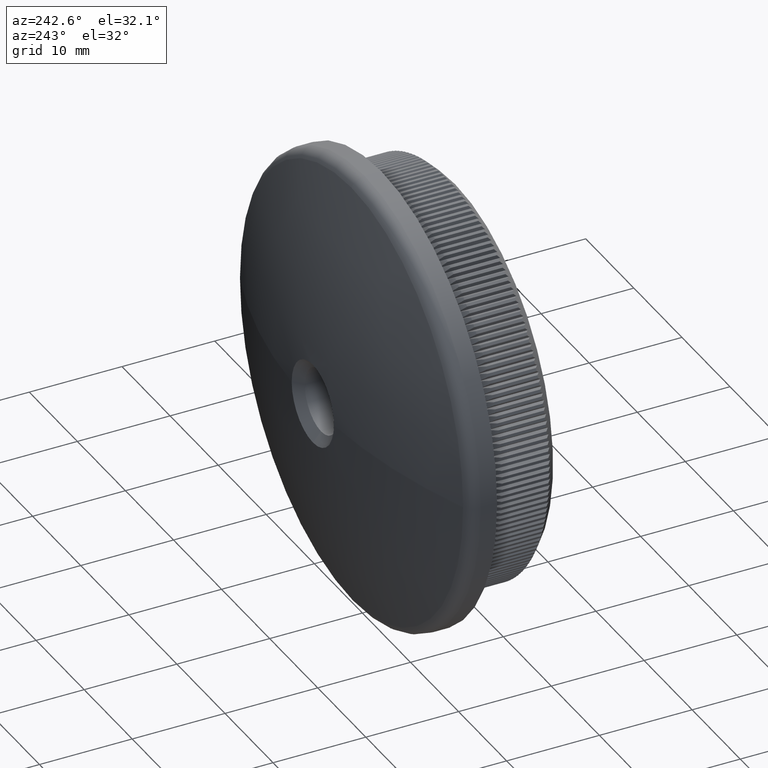
[diagram: clean part render]
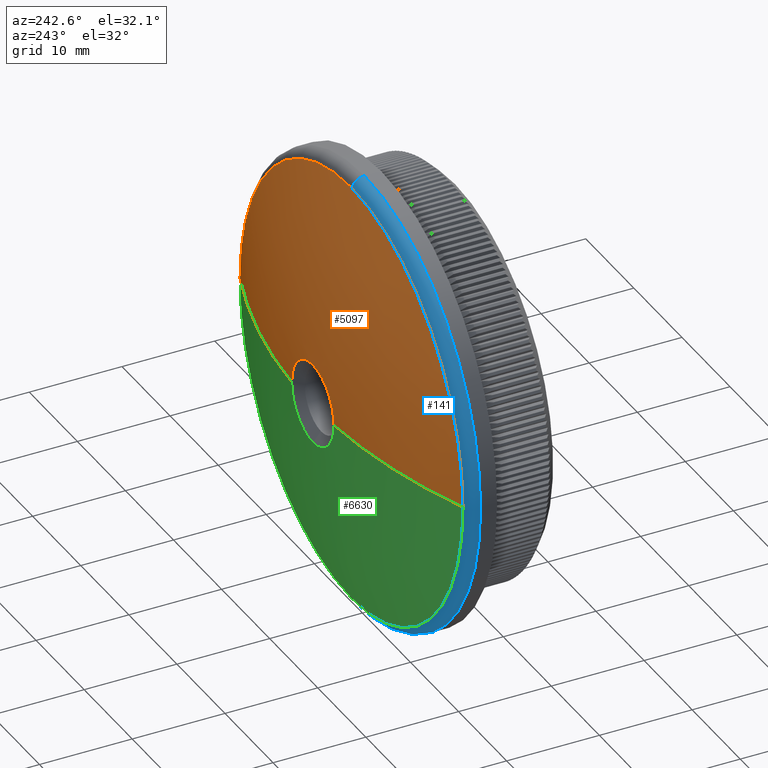
[diagram: same view with three faces highlighted in distinct colors, each labeled with its STEP entity id]
A machine part, auxiliary view with three faces highlighted in distinct colors.
Their STEP definitions:

[orange] entity #5097 — the highlighted spherical surface has radius 64.3949 mm.
#200 = AXIS2_PLACEMENT_3D ( 'NONE', #24238, #1489, #9030 ) ;
#728 = EDGE_CURVE ( 'NONE', #14427, #2995, #8876, .T. ) ;
#863 = ORIENTED_EDGE ( 'NONE', *, *, #15529, .T. ) ;
#1489 = DIRECTION ( 'NONE',  ( -0.0000000000000000000, -1.000000000000000000, -0.0000000000000000000 ) ) ;
#2564 = EDGE_CURVE ( 'NONE', #2995, #7954, #8036, .T. ) ;
#2995 = VERTEX_POINT ( 'NONE', #3242 ) ;
#3242 = CARTESIAN_POINT ( 'NONE',  ( -4.390565330205774300, 15.35014724972939800, 1.688833971194079000E-015 ) ) ;
#5097 = ADVANCED_FACE ( 'NONE', ( #31004 ), #29394, .T. ) ;
#5704 = VERTEX_POINT ( 'NONE', #10604 ) ;
#6187 = AXIS2_PLACEMENT_3D ( 'NONE', #31705, #9344, #17022 ) ;
#7954 = VERTEX_POINT ( 'NONE', #26955 ) ;
#8036 = CIRCLE ( 'NONE', #9123, 64.39494680851073800 ) ;
#8876 = CIRCLE ( 'NONE', #200, 4.390565330205774300 ) ;
#9030 = DIRECTION ( 'NONE',  ( 0.0000000000000000000, 0.0000000000000000000, -1.000000000000000000 ) ) ;
#9123 = AXIS2_PLACEMENT_3D ( 'NONE', #29347, #18793, #21329 ) ;
#9344 = DIRECTION ( 'NONE',  ( -0.0000000000000000000, -1.000000000000000000, -0.0000000000000000000 ) ) ;
#10604 = CARTESIAN_POINT ( 'NONE',  ( 23.19018648117216600, 11.17937736945556400, 0.0000000000000000000 ) ) ;
#11679 = DIRECTION ( 'NONE',  ( -1.000000000000000000, 0.0000000000000000000, 0.0000000000000000000 ) ) ;
#12028 = CIRCLE ( 'NONE', #18290, 23.19018648117216600 ) ;
#12269 = AXIS2_PLACEMENT_3D ( 'NONE', #31616, #24226, #11679 ) ;
#13549 = VERTEX_POINT ( 'NONE', #29895 ) ;
#14272 = AXIS2_PLACEMENT_3D ( 'NONE', #17521, #20718, #21041 ) ;
#14427 = VERTEX_POINT ( 'NONE', #26325 ) ;
#14626 = DIRECTION ( 'NONE',  ( 0.0000000000000000000, 0.0000000000000000000, -1.000000000000000000 ) ) ;
#15529 = EDGE_CURVE ( 'NONE', #7954, #27182, #30634, .T. ) ;
#15638 = ORIENTED_EDGE ( 'NONE', *, *, #728, .T. ) ;
#15976 = CARTESIAN_POINT ( 'NONE',  ( 0.0000000000000000000, 11.17937736945556700, 0.0000000000000000000 ) ) ;
#16988 = ORIENTED_EDGE ( 'NONE', *, *, #20457, .F. ) ;
#17022 = DIRECTION ( 'NONE',  ( 0.0000000000000000000, 0.0000000000000000000, -1.000000000000000000 ) ) ;
#17448 = AXIS2_PLACEMENT_3D ( 'NONE', #22378, #19636, #14626 ) ;
#17521 = CARTESIAN_POINT ( 'NONE',  ( 0.0000000000000000000, -48.89494680851073800, 0.0000000000000000000 ) ) ;
#18290 = AXIS2_PLACEMENT_3D ( 'NONE', #15976, #31001, #23398 ) ;
#18635 = ORIENTED_EDGE ( 'NONE', *, *, #25198, .T. ) ;
#18793 = DIRECTION ( 'NONE',  ( 1.224646799147353200E-016, -0.0000000000000000000, 1.000000000000000000 ) ) ;
#19022 = CARTESIAN_POINT ( 'NONE',  ( 2.898750392260314800E-015, 11.17937736945556700, 23.19018648117216600 ) ) ;
#19517 = ORIENTED_EDGE ( 'NONE', *, *, #26527, .T. ) ;
#19636 = DIRECTION ( 'NONE',  ( 0.0000000000000000000, 1.000000000000000000, 0.0000000000000000000 ) ) ;
#20457 = EDGE_CURVE ( 'NONE', #13549, #5704, #30426, .T. ) ;
#20718 = DIRECTION ( 'NONE',  ( 0.0000000000000000000, 0.0000000000000000000, 1.000000000000000000 ) ) ;
#21041 = DIRECTION ( 'NONE',  ( 1.000000000000000000, 0.0000000000000000000, 0.0000000000000000000 ) ) ;
#21329 = DIRECTION ( 'NONE',  ( 1.000000000000000000, 0.0000000000000000000, -1.224646799147353200E-016 ) ) ;
#22378 = CARTESIAN_POINT ( 'NONE',  ( 0.0000000000000000000, 11.17937736945556700, 0.0000000000000000000 ) ) ;
#23398 = DIRECTION ( 'NONE',  ( 0.0000000000000000000, 0.0000000000000000000, -1.000000000000000000 ) ) ;
#24056 = EDGE_LOOP ( 'NONE', ( #19517, #15638, #30573, #863, #18635, #16988 ) ) ;
#24226 = DIRECTION ( 'NONE',  ( 0.0000000000000000000, 0.0000000000000000000, -1.000000000000000000 ) ) ;
#24238 = CARTESIAN_POINT ( 'NONE',  ( 0.0000000000000000000, 15.35014724972939800, 0.0000000000000000000 ) ) ;
#25198 = EDGE_CURVE ( 'NONE', #27182, #5704, #12028, .T. ) ;
#26325 = CARTESIAN_POINT ( 'NONE',  ( 0.0000000000000000000, 15.35014724972939800, 4.390565330205769900 ) ) ;
#26527 = EDGE_CURVE ( 'NONE', #13549, #14427, #31129, .T. ) ;
#26955 = CARTESIAN_POINT ( 'NONE',  ( -23.19018648117216600, 11.17937736945556400, 2.839978764579771300E-015 ) ) ;
#27182 = VERTEX_POINT ( 'NONE', #19022 ) ;
#29347 = CARTESIAN_POINT ( 'NONE',  ( 0.0000000000000000000, -48.89494680851073800, 0.0000000000000000000 ) ) ;
#29394 = SPHERICAL_SURFACE ( 'NONE', #14272, 64.39494680851073800 ) ;
#29895 = CARTESIAN_POINT ( 'NONE',  ( 4.390565330205774300, 15.35014724972939800, 0.0000000000000000000 ) ) ;
#30426 = CIRCLE ( 'NONE', #12269, 64.39494680851073800 ) ;
#30573 = ORIENTED_EDGE ( 'NONE', *, *, #2564, .T. ) ;
#30634 = CIRCLE ( 'NONE', #17448, 23.19018648117216600 ) ;
#31001 = DIRECTION ( 'NONE',  ( 0.0000000000000000000, 1.000000000000000000, 0.0000000000000000000 ) ) ;
#31004 = FACE_OUTER_BOUND ( 'NONE', #24056, .T. ) ;
#31129 = CIRCLE ( 'NONE', #6187, 4.390565330205774300 ) ;
#31616 = CARTESIAN_POINT ( 'NONE',  ( 0.0000000000000000000, -48.89494680851073800, 0.0000000000000000000 ) ) ;
#31705 = CARTESIAN_POINT ( 'NONE',  ( 0.0000000000000000000, 15.35014724972939800, 0.0000000000000000000 ) ) ;

[blue] entity #141 — the highlighted toroidal blend (fillet) surface has major radius 22.65 mm and minor (blend) radius 1.5 mm.
#141 = ADVANCED_FACE ( 'NONE', ( #16489 ), #13260, .T. ) ;
#343 = AXIS2_PLACEMENT_3D ( 'NONE', #23248, #25809, #10519 ) ;
#1428 = CARTESIAN_POINT ( 'NONE',  ( 0.0000000000000000000, 9.780020886796899400, -22.64999999999999900 ) ) ;
#2167 = EDGE_CURVE ( 'NONE', #27182, #14712, #27425, .T. ) ;
#3285 = DIRECTION ( 'NONE',  ( 0.0000000000000000000, 0.0000000000000000000, -1.000000000000000000 ) ) ;
#4747 = DIRECTION ( 'NONE',  ( -0.0000000000000000000, -1.000000000000000000, -0.0000000000000000000 ) ) ;
#4982 = AXIS2_PLACEMENT_3D ( 'NONE', #23229, #13443, #3285 ) ;
#5355 = ORIENTED_EDGE ( 'NONE', *, *, #32624, .T. ) ;
#5658 = EDGE_CURVE ( 'NONE', #9393, #7954, #27802, .T. ) ;
#7052 = VERTEX_POINT ( 'NONE', #20575 ) ;
#7126 = CIRCLE ( 'NONE', #343, 24.15000000000000200 ) ;
#7954 = VERTEX_POINT ( 'NONE', #26955 ) ;
#8971 = DIRECTION ( 'NONE',  ( 0.0000000000000000000, 0.0000000000000000000, 1.000000000000000000 ) ) ;
#9393 = VERTEX_POINT ( 'NONE', #21310 ) ;
#9728 = ORIENTED_EDGE ( 'NONE', *, *, #2167, .F. ) ;
#10111 = AXIS2_PLACEMENT_3D ( 'NONE', #1428, #14179, #8971 ) ;
#10519 = DIRECTION ( 'NONE',  ( 0.0000000000000000000, 0.0000000000000000000, -1.000000000000000000 ) ) ;
#11701 = ORIENTED_EDGE ( 'NONE', *, *, #15529, .F. ) ;
#12244 = CARTESIAN_POINT ( 'NONE',  ( 0.0000000000000000000, 9.780020886796899400, 0.0000000000000000000 ) ) ;
#13182 = DIRECTION ( 'NONE',  ( -1.224646799147352000E-016, 0.0000000000000000000, -1.000000000000000000 ) ) ;
#13260 = TOROIDAL_SURFACE ( 'NONE', #13513, 22.64999999999999900, 1.500000000000000000 ) ;
#13443 = DIRECTION ( 'NONE',  ( 0.0000000000000000000, 1.000000000000000000, 0.0000000000000000000 ) ) ;
#13513 = AXIS2_PLACEMENT_3D ( 'NONE', #12244, #4747, #20152 ) ;
#14179 = DIRECTION ( 'NONE',  ( -1.000000000000000000, 0.0000000000000000000, 0.0000000000000000000 ) ) ;
#14626 = DIRECTION ( 'NONE',  ( 0.0000000000000000000, 0.0000000000000000000, -1.000000000000000000 ) ) ;
#14712 = VERTEX_POINT ( 'NONE', #30157 ) ;
#15529 = EDGE_CURVE ( 'NONE', #7954, #27182, #30634, .T. ) ;
#15770 = DIRECTION ( 'NONE',  ( 1.000000000000000000, 0.0000000000000000000, -1.224646799147353200E-016 ) ) ;
#16489 = FACE_OUTER_BOUND ( 'NONE', #18771, .T. ) ;
#17448 = AXIS2_PLACEMENT_3D ( 'NONE', #22378, #19636, #14626 ) ;
#18218 = EDGE_CURVE ( 'NONE', #14712, #7052, #7126, .T. ) ;
#18771 = EDGE_LOOP ( 'NONE', ( #9728, #11701, #29309, #5355, #26551 ) ) ;
#19022 = CARTESIAN_POINT ( 'NONE',  ( 2.898750392260314800E-015, 11.17937736945556700, 23.19018648117216600 ) ) ;
#19636 = DIRECTION ( 'NONE',  ( 0.0000000000000000000, 1.000000000000000000, 0.0000000000000000000 ) ) ;
#19776 = AXIS2_PLACEMENT_3D ( 'NONE', #30798, #15770, #13182 ) ;
#20152 = DIRECTION ( 'NONE',  ( 0.0000000000000000000, 0.0000000000000000000, -1.000000000000000000 ) ) ;
#20575 = CARTESIAN_POINT ( 'NONE',  ( 0.0000000000000000000, 9.780020886796899400, -24.15000000000000200 ) ) ;
#21310 = CARTESIAN_POINT ( 'NONE',  ( 0.0000000000000000000, 11.17937736945556700, -23.19018648117216600 ) ) ;
#22378 = CARTESIAN_POINT ( 'NONE',  ( 0.0000000000000000000, 11.17937736945556700, 0.0000000000000000000 ) ) ;
#23229 = CARTESIAN_POINT ( 'NONE',  ( 0.0000000000000000000, 11.17937736945556700, 0.0000000000000000000 ) ) ;
#23248 = CARTESIAN_POINT ( 'NONE',  ( 0.0000000000000000000, 9.780020886796899400, 0.0000000000000000000 ) ) ;
#25809 = DIRECTION ( 'NONE',  ( -0.0000000000000000000, -1.000000000000000000, -0.0000000000000000000 ) ) ;
#26551 = ORIENTED_EDGE ( 'NONE', *, *, #18218, .F. ) ;
#26955 = CARTESIAN_POINT ( 'NONE',  ( -23.19018648117216600, 11.17937736945556400, 2.839978764579771300E-015 ) ) ;
#27182 = VERTEX_POINT ( 'NONE', #19022 ) ;
#27425 = CIRCLE ( 'NONE', #19776, 1.500000000000001300 ) ;
#27702 = CIRCLE ( 'NONE', #10111, 1.500000000000001300 ) ;
#27802 = CIRCLE ( 'NONE', #4982, 23.19018648117216600 ) ;
#29309 = ORIENTED_EDGE ( 'NONE', *, *, #5658, .F. ) ;
#30157 = CARTESIAN_POINT ( 'NONE',  ( 2.957522019940858300E-015, 9.780020886796899400, 24.15000000000000200 ) ) ;
#30634 = CIRCLE ( 'NONE', #17448, 23.19018648117216600 ) ;
#30798 = CARTESIAN_POINT ( 'NONE',  ( 2.773825000068754800E-015, 9.780020886796899400, 22.64999999999999900 ) ) ;
#32624 = EDGE_CURVE ( 'NONE', #9393, #7052, #27702, .T. ) ;

[green] entity #6630 — the highlighted spherical surface has radius 64.3949 mm.
#724 = AXIS2_PLACEMENT_3D ( 'NONE', #29684, #12092, #12413 ) ;
#2551 = CIRCLE ( 'NONE', #10004, 4.390565330205774300 ) ;
#2564 = EDGE_CURVE ( 'NONE', #2995, #7954, #8036, .T. ) ;
#2995 = VERTEX_POINT ( 'NONE', #3242 ) ;
#3115 = ORIENTED_EDGE ( 'NONE', *, *, #3209, .T. ) ;
#3209 = EDGE_CURVE ( 'NONE', #14998, #13549, #2551, .T. ) ;
#3242 = CARTESIAN_POINT ( 'NONE',  ( -4.390565330205774300, 15.35014724972939800, 1.688833971194079000E-015 ) ) ;
#3285 = DIRECTION ( 'NONE',  ( 0.0000000000000000000, 0.0000000000000000000, -1.000000000000000000 ) ) ;
#4617 = CARTESIAN_POINT ( 'NONE',  ( 0.0000000000000000000, 15.35014724972939800, 0.0000000000000000000 ) ) ;
#4982 = AXIS2_PLACEMENT_3D ( 'NONE', #23229, #13443, #3285 ) ;
#5658 = EDGE_CURVE ( 'NONE', #9393, #7954, #27802, .T. ) ;
#5704 = VERTEX_POINT ( 'NONE', #10604 ) ;
#6630 = ADVANCED_FACE ( 'NONE', ( #27828 ), #8011, .T. ) ;
#7954 = VERTEX_POINT ( 'NONE', #26955 ) ;
#8011 = SPHERICAL_SURFACE ( 'NONE', #724, 64.39494680851073800 ) ;
#8036 = CIRCLE ( 'NONE', #9123, 64.39494680851073800 ) ;
#9123 = AXIS2_PLACEMENT_3D ( 'NONE', #29347, #18793, #21329 ) ;
#9393 = VERTEX_POINT ( 'NONE', #21310 ) ;
#9471 = DIRECTION ( 'NONE',  ( 0.0000000000000000000, 0.0000000000000000000, -1.000000000000000000 ) ) ;
#9865 = CARTESIAN_POINT ( 'NONE',  ( 0.0000000000000000000, 11.17937736945556700, 0.0000000000000000000 ) ) ;
#10004 = AXIS2_PLACEMENT_3D ( 'NONE', #30062, #15139, #15026 ) ;
#10604 = CARTESIAN_POINT ( 'NONE',  ( 23.19018648117216600, 11.17937736945556400, 0.0000000000000000000 ) ) ;
#11679 = DIRECTION ( 'NONE',  ( -1.000000000000000000, 0.0000000000000000000, 0.0000000000000000000 ) ) ;
#12092 = DIRECTION ( 'NONE',  ( 0.0000000000000000000, 0.0000000000000000000, 1.000000000000000000 ) ) ;
#12269 = AXIS2_PLACEMENT_3D ( 'NONE', #31616, #24226, #11679 ) ;
#12413 = DIRECTION ( 'NONE',  ( 1.000000000000000000, 0.0000000000000000000, 0.0000000000000000000 ) ) ;
#13320 = ORIENTED_EDGE ( 'NONE', *, *, #2564, .F. ) ;
#13443 = DIRECTION ( 'NONE',  ( 0.0000000000000000000, 1.000000000000000000, 0.0000000000000000000 ) ) ;
#13549 = VERTEX_POINT ( 'NONE', #29895 ) ;
#13578 = EDGE_CURVE ( 'NONE', #5704, #9393, #27166, .T. ) ;
#14998 = VERTEX_POINT ( 'NONE', #19782 ) ;
#15026 = DIRECTION ( 'NONE',  ( 0.0000000000000000000, 0.0000000000000000000, -1.000000000000000000 ) ) ;
#15139 = DIRECTION ( 'NONE',  ( -0.0000000000000000000, -1.000000000000000000, -0.0000000000000000000 ) ) ;
#16755 = AXIS2_PLACEMENT_3D ( 'NONE', #9865, #27240, #22620 ) ;
#18793 = DIRECTION ( 'NONE',  ( 1.224646799147353200E-016, -0.0000000000000000000, 1.000000000000000000 ) ) ;
#19782 = CARTESIAN_POINT ( 'NONE',  ( 5.376891778083837900E-016, 15.35014724972939800, -4.390565330205769900 ) ) ;
#20457 = EDGE_CURVE ( 'NONE', #13549, #5704, #30426, .T. ) ;
#20585 = EDGE_CURVE ( 'NONE', #2995, #14998, #24075, .T. ) ;
#21310 = CARTESIAN_POINT ( 'NONE',  ( 0.0000000000000000000, 11.17937736945556700, -23.19018648117216600 ) ) ;
#21329 = DIRECTION ( 'NONE',  ( 1.000000000000000000, 0.0000000000000000000, -1.224646799147353200E-016 ) ) ;
#22620 = DIRECTION ( 'NONE',  ( 0.0000000000000000000, 0.0000000000000000000, -1.000000000000000000 ) ) ;
#23229 = CARTESIAN_POINT ( 'NONE',  ( 0.0000000000000000000, 11.17937736945556700, 0.0000000000000000000 ) ) ;
#24075 = CIRCLE ( 'NONE', #26500, 4.390565330205774300 ) ;
#24226 = DIRECTION ( 'NONE',  ( 0.0000000000000000000, 0.0000000000000000000, -1.000000000000000000 ) ) ;
#25001 = ORIENTED_EDGE ( 'NONE', *, *, #20585, .T. ) ;
#26380 = ORIENTED_EDGE ( 'NONE', *, *, #5658, .T. ) ;
#26500 = AXIS2_PLACEMENT_3D ( 'NONE', #4617, #32051, #9471 ) ;
#26642 = EDGE_LOOP ( 'NONE', ( #13320, #25001, #3115, #31647, #26962, #26380 ) ) ;
#26955 = CARTESIAN_POINT ( 'NONE',  ( -23.19018648117216600, 11.17937736945556400, 2.839978764579771300E-015 ) ) ;
#26962 = ORIENTED_EDGE ( 'NONE', *, *, #13578, .T. ) ;
#27166 = CIRCLE ( 'NONE', #16755, 23.19018648117216600 ) ;
#27240 = DIRECTION ( 'NONE',  ( 0.0000000000000000000, 1.000000000000000000, 0.0000000000000000000 ) ) ;
#27802 = CIRCLE ( 'NONE', #4982, 23.19018648117216600 ) ;
#27828 = FACE_OUTER_BOUND ( 'NONE', #26642, .T. ) ;
#29347 = CARTESIAN_POINT ( 'NONE',  ( 0.0000000000000000000, -48.89494680851073800, 0.0000000000000000000 ) ) ;
#29684 = CARTESIAN_POINT ( 'NONE',  ( 0.0000000000000000000, -48.89494680851073800, 0.0000000000000000000 ) ) ;
#29895 = CARTESIAN_POINT ( 'NONE',  ( 4.390565330205774300, 15.35014724972939800, 0.0000000000000000000 ) ) ;
#30062 = CARTESIAN_POINT ( 'NONE',  ( 0.0000000000000000000, 15.35014724972939800, 0.0000000000000000000 ) ) ;
#30426 = CIRCLE ( 'NONE', #12269, 64.39494680851073800 ) ;
#31616 = CARTESIAN_POINT ( 'NONE',  ( 0.0000000000000000000, -48.89494680851073800, 0.0000000000000000000 ) ) ;
#31647 = ORIENTED_EDGE ( 'NONE', *, *, #20457, .T. ) ;
#32051 = DIRECTION ( 'NONE',  ( -0.0000000000000000000, -1.000000000000000000, -0.0000000000000000000 ) ) ;